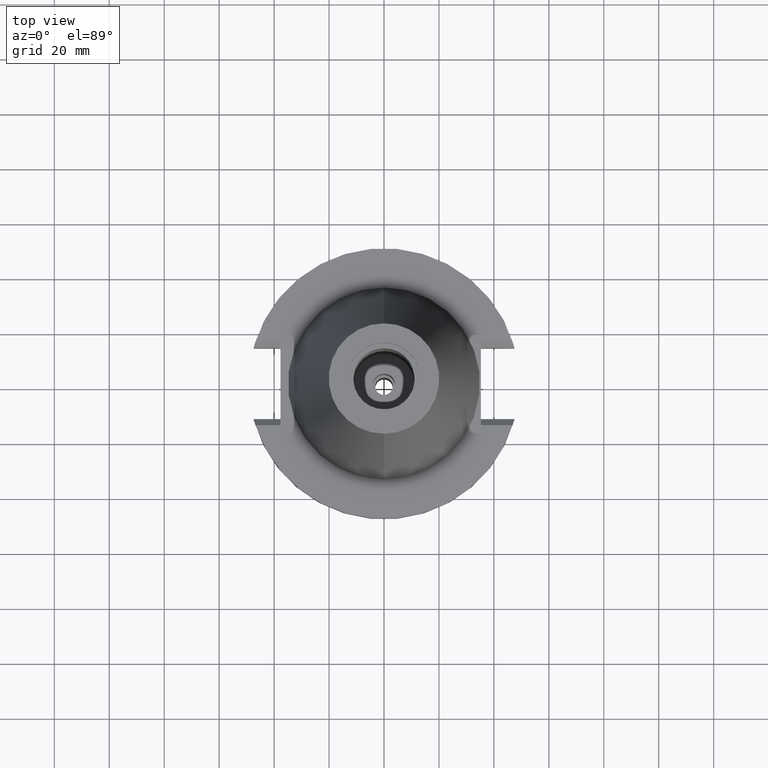
[diagram: clean part render]
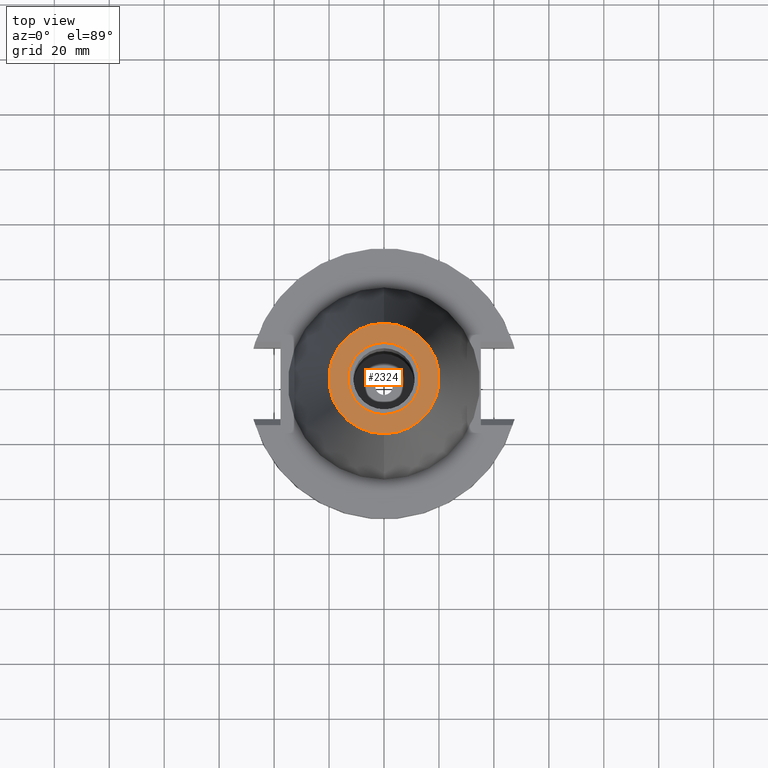
[diagram: same view with one face highlighted and labeled with its STEP entity id]
A machine part, top view. The second image highlights one B-rep face of the part: STEP entity #2324.
In plain terms, the highlighted planar face has unit normal (0, 0, -1).
Its self-contained STEP definition (entity closure, byte-faithful):
#16 = CARTESIAN_POINT ( 'NONE',  ( 0.0000000000000000000, -13.11500000000000021, 101.5999999999999943 ) ) ;
#20 = AXIS2_PLACEMENT_3D ( 'NONE', #1383, #2626, #2421 ) ;
#54 = DIRECTION ( 'NONE',  ( 0.0000000000000000000, 1.000000000000000000, 0.0000000000000000000 ) ) ;
#74 = CARTESIAN_POINT ( 'NONE',  ( 0.0000000000000000000, 13.11500000000000021, 101.5999999999999943 ) ) ;
#242 = AXIS2_PLACEMENT_3D ( 'NONE', #3116, #2659, #54 ) ;
#286 = ORIENTED_EDGE ( 'NONE', *, *, #1264, .F. ) ;
#307 = ORIENTED_EDGE ( 'NONE', *, *, #2884, .F. ) ;
#308 = CIRCLE ( 'NONE', #2183, 13.11500000000000021 ) ;
#341 = ORIENTED_EDGE ( 'NONE', *, *, #2808, .F. ) ;
#428 = DIRECTION ( 'NONE',  ( 0.0000000000000000000, -1.000000000000000000, 0.0000000000000000000 ) ) ;
#473 = AXIS2_PLACEMENT_3D ( 'NONE', #1732, #2753, #2215 ) ;
#642 = FACE_OUTER_BOUND ( 'NONE', #2263, .T. ) ;
#757 = EDGE_CURVE ( 'NONE', #2697, #2342, #3102, .T. ) ;
#973 = PLANE ( 'NONE',  #2504 ) ;
#1258 = CIRCLE ( 'NONE', #242, 20.10832422388000040 ) ;
#1264 = EDGE_CURVE ( 'NONE', #1403, #3274, #308, .T. ) ;
#1383 = CARTESIAN_POINT ( 'NONE',  ( 0.0000000000000000000, 2.603966489026999937E-14, 101.5999999999999943 ) ) ;
#1403 = VERTEX_POINT ( 'NONE', #74 ) ;
#1460 = FACE_BOUND ( 'NONE', #1883, .T. ) ;
#1530 = DIRECTION ( 'NONE',  ( 0.0000000000000000000, 0.0000000000000000000, 1.000000000000000000 ) ) ;
#1680 = DIRECTION ( 'NONE',  ( 0.0000000000000000000, 0.0000000000000000000, -1.000000000000000000 ) ) ;
#1732 = CARTESIAN_POINT ( 'NONE',  ( 0.0000000000000000000, 1.846767373113999857E-14, 101.5999999999999943 ) ) ;
#1760 = ORIENTED_EDGE ( 'NONE', *, *, #757, .F. ) ;
#1769 = CARTESIAN_POINT ( 'NONE',  ( 0.0000000000000000000, -20.10832422388000040, 101.5999999999999943 ) ) ;
#1837 = CARTESIAN_POINT ( 'NONE',  ( 0.0000000000000000000, 2.603966489026999937E-14, 101.5999999999999943 ) ) ;
#1883 = EDGE_LOOP ( 'NONE', ( #286, #307 ) ) ;
#1974 = CARTESIAN_POINT ( 'NONE',  ( 0.0000000000000000000, 20.10832422388000040, 101.5999999999999943 ) ) ;
#2058 = DIRECTION ( 'NONE',  ( 0.0000000000000000000, 1.000000000000000000, 0.0000000000000000000 ) ) ;
#2183 = AXIS2_PLACEMENT_3D ( 'NONE', #1837, #1530, #2058 ) ;
#2184 = CARTESIAN_POINT ( 'NONE',  ( 0.0000000000000000000, 2.468887947081000065E-14, 101.5999999999999943 ) ) ;
#2215 = DIRECTION ( 'NONE',  ( 0.0000000000000000000, -1.000000000000000000, 0.0000000000000000000 ) ) ;
#2263 = EDGE_LOOP ( 'NONE', ( #341, #1760 ) ) ;
#2324 = ADVANCED_FACE ( 'NONE', ( #642, #1460 ), #973, .F. ) ;
#2342 = VERTEX_POINT ( 'NONE', #1974 ) ;
#2421 = DIRECTION ( 'NONE',  ( 0.0000000000000000000, -1.000000000000000000, 0.0000000000000000000 ) ) ;
#2504 = AXIS2_PLACEMENT_3D ( 'NONE', #2184, #1680, #428 ) ;
#2626 = DIRECTION ( 'NONE',  ( 0.0000000000000000000, 0.0000000000000000000, 1.000000000000000000 ) ) ;
#2659 = DIRECTION ( 'NONE',  ( 0.0000000000000000000, 0.0000000000000000000, -1.000000000000000000 ) ) ;
#2697 = VERTEX_POINT ( 'NONE', #1769 ) ;
#2753 = DIRECTION ( 'NONE',  ( 0.0000000000000000000, 0.0000000000000000000, -1.000000000000000000 ) ) ;
#2808 = EDGE_CURVE ( 'NONE', #2342, #2697, #1258, .T. ) ;
#2868 = CIRCLE ( 'NONE', #20, 13.11500000000000021 ) ;
#2884 = EDGE_CURVE ( 'NONE', #3274, #1403, #2868, .T. ) ;
#3102 = CIRCLE ( 'NONE', #473, 20.10832422388000040 ) ;
#3116 = CARTESIAN_POINT ( 'NONE',  ( 0.0000000000000000000, 1.846767373113999857E-14, 101.5999999999999943 ) ) ;
#3274 = VERTEX_POINT ( 'NONE', #16 ) ;